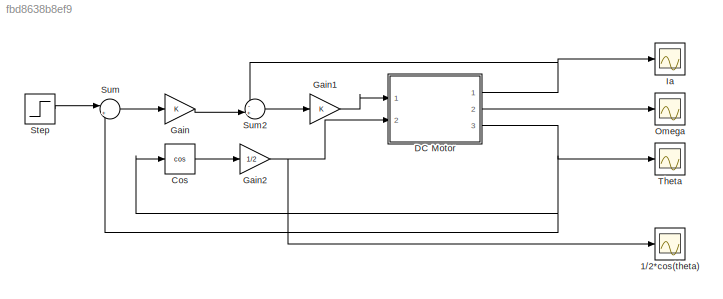
MODEL slx_fbd8638b8ef9
KIND model
CONFIG AbsTol = auto
CONFIG EnableMultiTasking = off
CONFIG FixedStep = auto
CONFIG MaxStep = auto
CONFIG MinStep = auto
CONFIG RelTol = 1e-3
CONFIG SampleTimeConstraint = Unconstrained
CONFIG SolverName = VariableStepAuto
CONFIG StartTime = 0.0
CONFIG StopTime = 10
BLOCK [Scope] 1//2*cos(theta)
  Floating = off
  NumInputPorts = 1
  Ports = [1]
  ScopeSpecificationString = Simulink.scopes.TimeScopeBlockCfg('CurrentConfiguration', extmgr.ConfigurationSet(extmgr.Configuration('Core','General UI',true),extmgr.Configuration('Core','Source UI',true),extmgr.Configuration('Sources','WiredSimulink',true,'DataLoggingVariableName','ScopeData1'),extmgr.Configuration('Visuals','Time Domain',true,'SerializedDisplays',{struct('MinYLimReal','-0.04319','MaxYLimReal','0.56035','YLab...<+1364ch>
BLOCK [Trigonometry] Cos
  Operator = cos
  Ports = [1, 1]
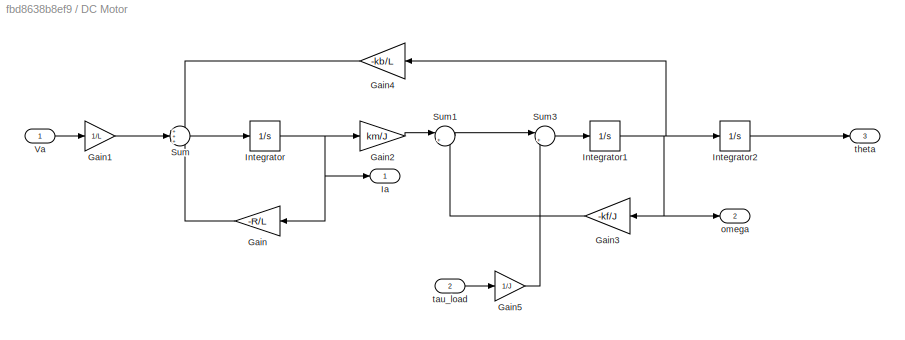
BLOCK [SubSystem] DC Motor
  Ports = [2, 3]
  RequestExecContextInheritance = off
BLOCK [Gain] DC Motor/Gain
  Gain = -R/L
  NameLocation = top
BLOCK [Gain] DC Motor/Gain1
  Gain = 1/L
BLOCK [Gain] DC Motor/Gain2
  Gain = km/J
BLOCK [Gain] DC Motor/Gain3
  Gain = -kf/J
  NameLocation = top
BLOCK [Gain] DC Motor/Gain4
  Gain = -kb/L
  NameLocation = top
BLOCK [Gain] DC Motor/Gain5
  Gain = 1/J
BLOCK [Outport] DC Motor/Ia
  VectorParamsAs1DForOutWhenUnconnected = off
BLOCK [Integrator] DC Motor/Integrator
  Ports = [1, 1]
BLOCK [Integrator] DC Motor/Integrator1
  Ports = [1, 1]
BLOCK [Integrator] DC Motor/Integrator2
  Ports = [1, 1]
BLOCK [Sum] DC Motor/Sum
  Inputs = +++
  Ports = [3, 1]
BLOCK [Sum] DC Motor/Sum1
  Inputs = |++
  Ports = [2, 1]
BLOCK [Sum] DC Motor/Sum3
  Inputs = |+-
  Ports = [2, 1]
BLOCK [Inport] DC Motor/Va
BLOCK [Outport] DC Motor/omega
  Port = 2
  VectorParamsAs1DForOutWhenUnconnected = off
BLOCK [Inport] DC Motor/tau_load
  Port = 2
BLOCK [Outport] DC Motor/theta
  Port = 3
  VectorParamsAs1DForOutWhenUnconnected = off
BLOCK [Gain] Gain
BLOCK [Gain] Gain1
BLOCK [Gain] Gain2
  Gain = 1/2
BLOCK [Scope] Ia
  Floating = off
  NumInputPorts = 1
  Ports = [1]
  ScopeSpecificationString = Simulink.scopes.TimeScopeBlockCfg('CurrentConfiguration', extmgr.ConfigurationSet(extmgr.Configuration('Core','General UI',true),extmgr.Configuration('Core','Source UI',true),extmgr.Configuration('Sources','WiredSimulink',true,'DataLoggingVariableName','ScopeData1'),extmgr.Configuration('Visuals','Time Domain',true,'SerializedDisplays',{struct('MinYLimReal','-0.47594','MaxYLimReal','0.77091','YLab...<+1397ch>
BLOCK [Scope] Omega
  Floating = off
  NumInputPorts = 1
  Ports = [1]
  ScopeSpecificationString = Simulink.scopes.TimeScopeBlockCfg('CurrentConfiguration', extmgr.ConfigurationSet(extmgr.Configuration('Core','General UI',true),extmgr.Configuration('Core','Source UI',true),extmgr.Configuration('Sources','WiredSimulink',true,'DataLoggingVariableName','ScopeData2'),extmgr.Configuration('Visuals','Time Domain',true,'SerializedDisplays',{struct('MinYLimReal','-4.71401','MaxYLimReal','7.63256','YLab...<+1397ch>
BLOCK [Step] Step
  SampleTime = 0
BLOCK [Sum] Sum
  Inputs = |+-
  Ports = [2, 1]
BLOCK [Sum] Sum2
  Inputs = -+|
  Ports = [2, 1]
BLOCK [Scope] Theta
  Floating = off
  NumInputPorts = 1
  Ports = [1]
  ScopeSpecificationString = Simulink.scopes.TimeScopeBlockCfg('CurrentConfiguration', extmgr.ConfigurationSet(extmgr.Configuration('Core','General UI',true),extmgr.Configuration('Core','Source UI',true),extmgr.Configuration('Sources','WiredSimulink',true),extmgr.Configuration('Visuals','Time Domain',true,'SerializedDisplays',{struct('MinYLimReal','-0.26226','MaxYLimReal','1.73632','YLabelReal','','MinYLimMag','0.00000','MaxY...<+1478ch>
LINE Cos:1 -> Gain2:1
LINE DC Motor/Gain1:1 -> DC Motor/Sum:2
LINE DC Motor/Gain2:1 -> DC Motor/Sum1:1
LINE DC Motor/Gain3:1 -> DC Motor/Sum1:2
LINE DC Motor/Gain4:1 -> DC Motor/Sum:1
LINE DC Motor/Gain5:1 -> DC Motor/Sum3:2
LINE DC Motor/Gain:1 -> DC Motor/Sum:3
NET DC Motor/Integrator1:1 -> DC Motor/Gain3:1, DC Motor/Gain4:1, DC Motor/Integrator2:1, DC Motor/omega:1
LINE DC Motor/Integrator2:1 -> DC Motor/theta:1
NET DC Motor/Integrator:1 -> DC Motor/Gain2:1, DC Motor/Gain:1, DC Motor/Ia:1
LINE DC Motor/Sum1:1 -> DC Motor/Sum3:1
LINE DC Motor/Sum3:1 -> DC Motor/Integrator1:1
LINE DC Motor/Sum:1 -> DC Motor/Integrator:1
LINE DC Motor/Va:1 -> DC Motor/Gain1:1
LINE DC Motor/tau_load:1 -> DC Motor/Gain5:1
NET DC Motor:1 -> Ia:1, Sum2:1
LINE DC Motor:2 -> Omega:1
NET DC Motor:3 -> Cos:1, Sum:2, Theta:1
LINE Gain1:1 -> DC Motor:1
NET Gain2:1 -> 1//2*cos(theta):1, DC Motor:2
LINE Gain:1 -> Sum2:2
LINE Step:1 -> Sum:1
LINE Sum2:1 -> Gain1:1
LINE Sum:1 -> Gain:1
note: NET lines group one-source signal fan-out (src -> all destinations, sorted); 1:1 wires keep LINE
